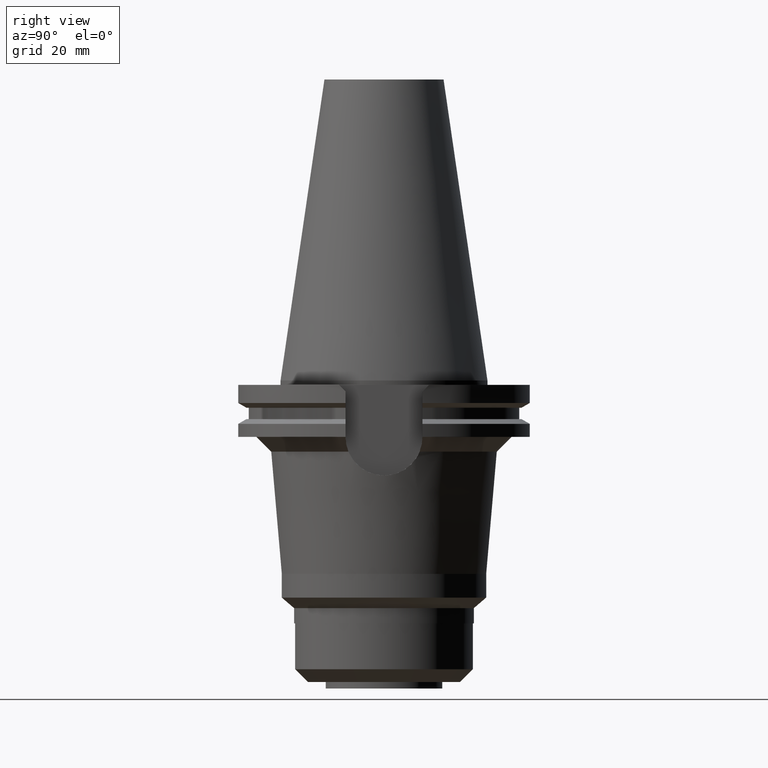
[diagram: clean part render]
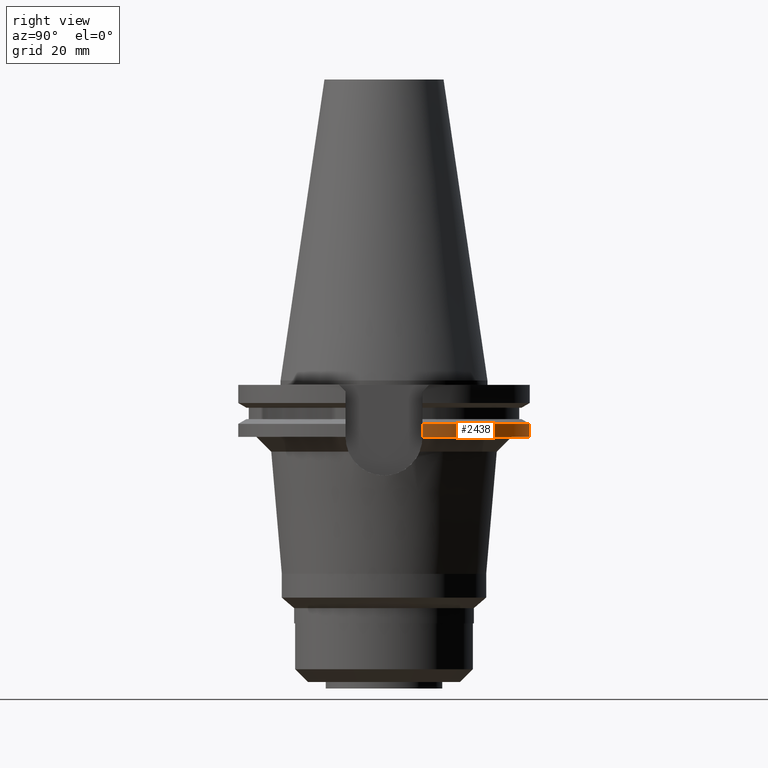
[diagram: same view with one face highlighted and labeled with its STEP entity id]
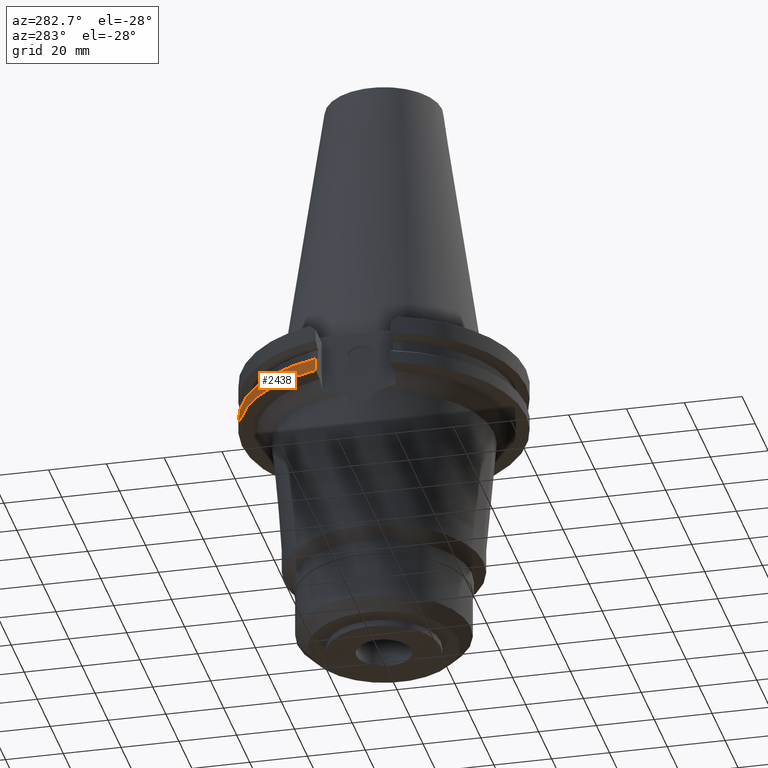
[diagram: same view with one face highlighted and labeled with its STEP entity id]
A machine part, right view. The second image highlights one B-rep face of the part: STEP entity #2438.
A second angle (auxiliary view) of the same face is appended — the face is thin or edge-on in the first view.
In plain terms, the highlighted cylindrical surface (partial cylindrical patch) has radius 49.2125 mm, axis along (0, 0, -1).
Its self-contained STEP definition (entity closure, byte-faithful):
#875=CARTESIAN_POINT('',(0.E0,1.370134838886E-14,-1.905E1));
#876=DIRECTION('',(0.E0,0.E0,1.E0));
#877=DIRECTION('',(9.647287063661E-1,2.632461264923E-1,0.E0));
#878=AXIS2_PLACEMENT_3D('',#875,#876,#877);
#883=CARTESIAN_POINT('',(0.E0,1.370134838886E-14,-1.905E1));
#884=DIRECTION('',(0.E0,0.E0,1.E0));
#885=DIRECTION('',(0.E0,1.E0,0.E0));
#886=AXIS2_PLACEMENT_3D('',#883,#884,#885);
#907=DIRECTION('',(1.341459893288E-13,4.808244798230E-14,1.E0));
#908=VECTOR('',#907,4.396333230921E0);
#909=CARTESIAN_POINT('',(4.747671146204E1,1.2955E1,-1.905E1));
#910=LINE('',#909,#908);
#914=DIRECTION('',(1.228324721565E-13,-4.808244798230E-14,-1.E0));
#915=VECTOR('',#914,4.396333230921E0);
#916=CARTESIAN_POINT('',(-4.747671146204E1,1.2955E1,-1.465366676908E1));
#917=LINE('',#916,#915);
#921=CARTESIAN_POINT('',(4.747671146204E1,1.2955E1,-1.465366676908E1));
#936=CARTESIAN_POINT('',(-4.747671146204E1,1.2955E1,-1.465366676908E1));
#941=CARTESIAN_POINT('',(0.E0,0.E0,-1.465366676908E1));
#942=DIRECTION('',(0.E0,0.E0,-1.E0));
#943=DIRECTION('',(-9.647287063661E-1,2.632461264923E-1,0.E0));
#944=AXIS2_PLACEMENT_3D('',#941,#942,#943);
#949=CARTESIAN_POINT('',(0.E0,0.E0,-1.465366676908E1));
#950=DIRECTION('',(0.E0,0.E0,-1.E0));
#951=DIRECTION('',(0.E0,1.E0,0.E0));
#952=AXIS2_PLACEMENT_3D('',#949,#950,#951);
#1765=VERTEX_POINT('',#921);
#1766=CARTESIAN_POINT('',(4.747671146204E1,1.2955E1,-1.905E1));
#1767=VERTEX_POINT('',#1766);
#1803=VERTEX_POINT('',#936);
#1804=CARTESIAN_POINT('',(0.E0,4.92125E1,-1.465366676908E1));
#1805=VERTEX_POINT('',#1804);
#1810=CARTESIAN_POINT('',(-4.747671146204E1,1.2955E1,-1.905E1));
#1811=VERTEX_POINT('',#1810);
#1812=CARTESIAN_POINT('',(0.E0,4.92125E1,-1.905E1));
#1813=VERTEX_POINT('',#1812);
#2423=CARTESIAN_POINT('',(0.E0,1.370134838886E-14,1.1188E2));
#2424=DIRECTION('',(0.E0,0.E0,-1.E0));
#2425=DIRECTION('',(0.E0,-1.E0,0.E0));
#2426=AXIS2_PLACEMENT_3D('',#2423,#2424,#2425);
#2427=CYLINDRICAL_SURFACE('',#2426,4.92125E1);
#2428=ORIENTED_EDGE('',*,*,#2002,.T.);
#2430=ORIENTED_EDGE('',*,*,#2429,.F.);
#2432=ORIENTED_EDGE('',*,*,#2431,.F.);
#2433=ORIENTED_EDGE('',*,*,#2386,.T.);
#2434=ORIENTED_EDGE('',*,*,#2415,.F.);
#2435=ORIENTED_EDGE('',*,*,#2413,.F.);
#2436=EDGE_LOOP('',(#2428,#2430,#2432,#2433,#2434,#2435));
#2437=FACE_OUTER_BOUND('',#2436,.F.);
#879=CIRCLE('',#878,4.92125E1);
#887=CIRCLE('',#886,4.92125E1);
#945=CIRCLE('',#944,4.92125E1);
#953=CIRCLE('',#952,4.92125E1);
#2002=EDGE_CURVE('',#1767,#1765,#910,.T.);
#2386=EDGE_CURVE('',#1803,#1811,#917,.T.);
#2413=EDGE_CURVE('',#1767,#1813,#879,.T.);
#2415=EDGE_CURVE('',#1813,#1811,#887,.T.);
#2429=EDGE_CURVE('',#1805,#1765,#953,.T.);
#2431=EDGE_CURVE('',#1803,#1805,#945,.T.);
#2438=ADVANCED_FACE('',(#2437),#2427,.T.);